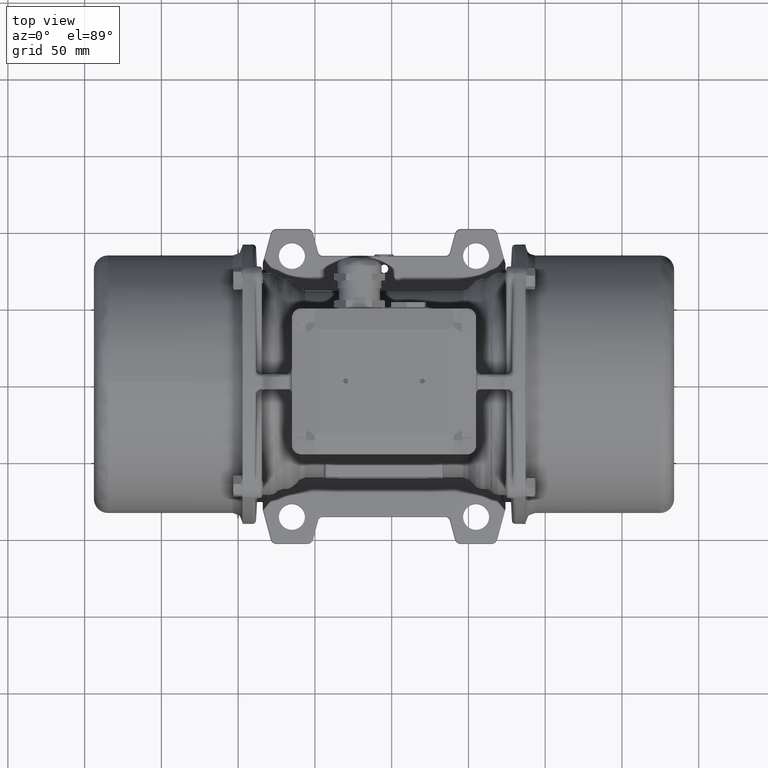
[diagram: clean part render]
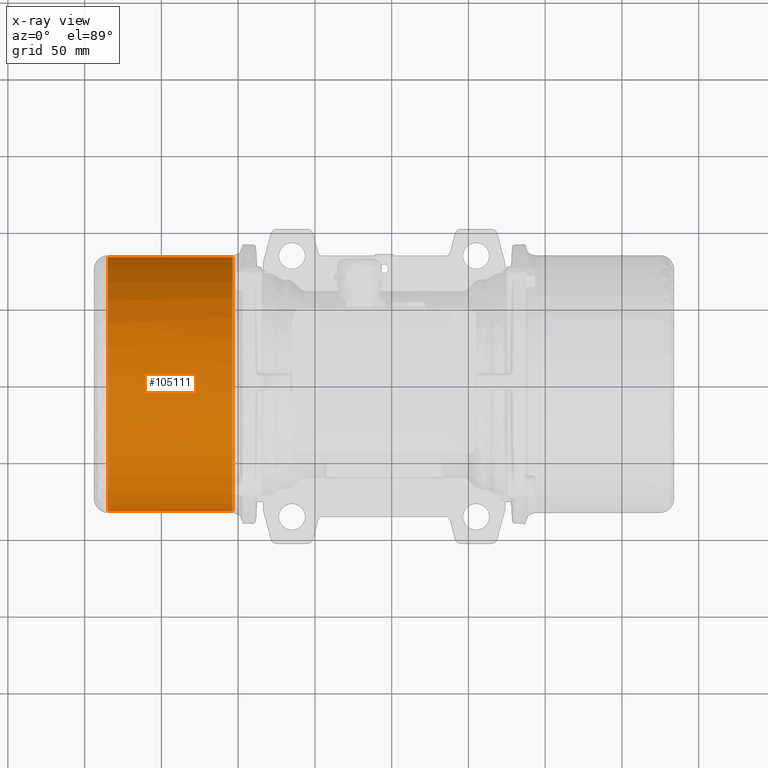
[diagram: x-ray — body ghosted, one internal face saturated and labeled with its STEP entity id]
A machine part, top view, then the same camera in x-ray: the body is ghosted and one INTERNAL B-rep face — a face not visible from any outside direction — is saturated and labeled: STEP entity #105111.
In plain terms, the highlighted cylindrical surface (partial cylindrical patch) has radius 82.7 mm, axis along (-1, 0, 0).
Its self-contained STEP definition (entity closure, byte-faithful):
#4409 = CARTESIAN_POINT ( 'NONE',  ( -103.5000152587889800, 82.69999998929405600, -68.99999999999998600 ) ) ;
#4461 = DIRECTION ( 'NONE',  ( -1.000000000000000000, 3.413969940421760200E-016, 0.0000000000000000000 ) ) ;
#4519 = CARTESIAN_POINT ( 'NONE',  ( -103.5000152587890300, -82.70000001070593500, -69.00000000000000000 ) ) ;
#4521 = DIRECTION ( 'NONE',  ( -1.000000000000000000, 3.413969940421760200E-016, 0.0000000000000000000 ) ) ;
#6262 = CARTESIAN_POINT ( 'NONE',  ( -184.8000152587889900, 82.69999998929409900, -68.99999998688879500 ) ) ;
#6283 = CARTESIAN_POINT ( 'NONE',  ( -184.8000152587889900, 82.69999998360610500, -66.29476778889633700 ) ) ;
#6285 = CARTESIAN_POINT ( 'NONE',  ( -184.8000152587889900, 82.43409582488270400, -60.88051049506188400 ) ) ;
#6287 = CARTESIAN_POINT ( 'NONE',  ( -184.8000152587889900, 81.24136085191159400, -52.84031927547700000 ) ) ;
#6289 = CARTESIAN_POINT ( 'NONE',  ( -184.8000152587889900, 79.26622166312230900, -44.95491321030630200 ) ) ;
#6291 = CARTESIAN_POINT ( 'NONE',  ( -184.8000152587889900, 76.52770484085640100, -37.30129129074310200 ) ) ;
#6293 = CARTESIAN_POINT ( 'NONE',  ( -184.8000152587889900, 73.05218381975579700, -29.95288745134129700 ) ) ;
#6295 = CARTESIAN_POINT ( 'NONE',  ( -184.8000152587889900, 68.87312979282299400, -22.98054449421110200 ) ) ;
#6297 = CARTESIAN_POINT ( 'NONE',  ( -184.8000152587889900, 64.03078936582119200, -16.45139022364369900 ) ) ;
#6299 = CARTESIAN_POINT ( 'NONE',  ( -184.8000152587889900, 58.57179696001870200, -10.42830929718990000 ) ) ;
#6301 = CARTESIAN_POINT ( 'NONE',  ( -184.8000152587889900, 52.54872569691159600, -4.969305905398639900 ) ) ;
#6303 = CARTESIAN_POINT ( 'NONE',  ( -184.8000152587889900, 46.01958108992549500, -0.1269536549657079800 ) ) ;
#6305 = CARTESIAN_POINT ( 'NONE',  ( -184.8000152587889900, 39.04724241918440000, 4.052113020628000900 ) ) ;
#6307 = CARTESIAN_POINT ( 'NONE',  ( -184.8000152587889900, 31.69885716920380100, 7.527647366589739900 ) ) ;
#6309 = CARTESIAN_POINT ( 'NONE',  ( -184.8000152587889900, 24.04519436141059800, 10.26617806880130100 ) ) ;
#6311 = CARTESIAN_POINT ( 'NONE',  ( -184.8000152587889900, 16.15996300925679900, 12.24133155732529900 ) ) ;
#6313 = CARTESIAN_POINT ( 'NONE',  ( -184.8000152587889900, 8.119102259580238000, 13.43408601023210200 ) ) ;
#6315 = CARTESIAN_POINT ( 'NONE',  ( -184.8000152587889900, 5.005654495526809600E-005, 13.83295454113590000 ) ) ;
#6317 = CARTESIAN_POINT ( 'NONE',  ( -184.8000152587889900, -8.119002628665638700, 13.43409582513340100 ) ) ;
#6319 = CARTESIAN_POINT ( 'NONE',  ( -184.8000152587889900, -16.15986482022480100, 12.24135109260490000 ) ) ;
#6321 = CARTESIAN_POINT ( 'NONE',  ( -184.8000152587889900, -24.04509856008200000, 10.26620713632370000 ) ) ;
#6323 = CARTESIAN_POINT ( 'NONE',  ( -184.8000152587889900, -31.69876467840469700, 7.527685686418630300 ) ) ;
#6325 = CARTESIAN_POINT ( 'NONE',  ( -184.8000152587889900, -39.04715412985880400, 4.052160223722060200 ) ) ;
#6327 = CARTESIAN_POINT ( 'NONE',  ( -184.8000152587889900, -46.01949785255460100, -0.1268980231983270200 ) ) ;
#6329 = CARTESIAN_POINT ( 'NONE',  ( -184.8000152587889900, -52.54864831332370300, -4.969242380722699100 ) ) ;
#6331 = CARTESIAN_POINT ( 'NONE',  ( -184.8000152587889900, -58.57172617566670400, -10.42823849138320100 ) ) ;
#6333 = CARTESIAN_POINT ( 'NONE',  ( -184.8000152587889900, -64.03072586260378800, -16.45131281860540200 ) ) ;
#6335 = CARTESIAN_POINT ( 'NONE',  ( -184.8000152587889900, -68.87307418251870700, -22.98046123539469900 ) ) ;
#6337 = CARTESIAN_POINT ( 'NONE',  ( -184.8000152587889900, -73.05213663812389800, -29.95279914057519800 ) ) ;
#6339 = CARTESIAN_POINT ( 'NONE',  ( -184.8000152587889900, -76.52766654250709200, -37.30119877850890500 ) ) ;
#6341 = CARTESIAN_POINT ( 'NONE',  ( -184.8000152587889900, -79.26619261702599300, -44.95481738754830300 ) ) ;
#6343 = CARTESIAN_POINT ( 'NONE',  ( -184.8000152587889900, -81.24134133826640900, -52.84022106502109800 ) ) ;
#6345 = CARTESIAN_POINT ( 'NONE',  ( -184.8000152587889900, -82.43409092968570900, -60.88044386567270300 ) ) ;
#6347 = CARTESIAN_POINT ( 'NONE',  ( -184.8000152587889900, -82.70000001113479000, -66.29473452811429000 ) ) ;
#6349 = CARTESIAN_POINT ( 'NONE',  ( -184.8000152587889900, -82.70000001070600600, -69.00000001311121900 ) ) ;
#6351 = CARTESIAN_POINT ( 'NONE',  ( -103.5000152587890100, 82.69999998929409900, -68.99999998688879500 ) ) ;
#6373 = CARTESIAN_POINT ( 'NONE',  ( -103.5000152587889300, 82.69999998843593400, -63.58729764414132300 ) ) ;
#6375 = CARTESIAN_POINT ( 'NONE',  ( -103.5000152587889500, 82.16690851994903300, -58.17472914121025000 ) ) ;
#6377 = CARTESIAN_POINT ( 'NONE',  ( -103.5000152587889300, 80.05497683221767600, -47.55733157160357600 ) ) ;
#6379 = CARTESIAN_POINT ( 'NONE',  ( -103.5000152587889300, 78.47618883464599500, -42.35276504100578900 ) ) ;
#6381 = CARTESIAN_POINT ( 'NONE',  ( -103.5000152587889200, 74.33348581127411600, -32.35139522158212300 ) ) ;
#6383 = CARTESIAN_POINT ( 'NONE',  ( -103.5000152587889300, 71.76967322196975400, -27.55483923633380500 ) ) ;
#6385 = CARTESIAN_POINT ( 'NONE',  ( -103.5000152587889300, 65.75540061689088100, -18.55384420042078400 ) ) ;
#6387 = CARTESIAN_POINT ( 'NONE',  ( -103.5000152587889500, 62.30508931585833200, -14.34962771709573000 ) ) ;
#6389 = CARTESIAN_POINT ( 'NONE',  ( -103.5000152587889800, 54.65037225244273600, -6.694910656107297500 ) ) ;
#6391 = CARTESIAN_POINT ( 'NONE',  ( -103.5000152587889500, 50.44615576802366500, -3.244599356407779700 ) ) ;
#6393 = CARTESIAN_POINT ( 'NONE',  ( -103.5000152587889800, 41.44516073020363200, 2.769673245817062800 ) ) ;
#6395 = CARTESIAN_POINT ( 'NONE',  ( -103.5000152587889500, 36.64860474414251700, 5.333485833600461100 ) ) ;
#6397 = CARTESIAN_POINT ( 'NONE',  ( -103.5000152587889300, 26.64723492340530700, 9.476188853801144100 ) ) ;
#6399 = CARTESIAN_POINT ( 'NONE',  ( -103.5000152587889600, 21.44266839230676400, 11.05497684972261200 ) ) ;
#6401 = CARTESIAN_POINT ( 'NONE',  ( -103.5000152587889500, 10.82527082203047500, 13.16690853408742600 ) ) ;
#6403 = CARTESIAN_POINT ( 'NONE',  ( -103.5000152587889600, 5.412702318930347400, 13.70000000085811300 ) ) ;
#6405 = CARTESIAN_POINT ( 'NONE',  ( -103.5000152587889800, -5.412702366564468900, 13.69999999914187100 ) ) ;
#6407 = CARTESIAN_POINT ( 'NONE',  ( -103.5000152587889600, -10.82527086949555400, 13.16690853065497900 ) ) ;
#6409 = CARTESIAN_POINT ( 'NONE',  ( -103.5000152587889800, -21.44266843910221000, 11.05497684292363300 ) ) ;
#6411 = CARTESIAN_POINT ( 'NONE',  ( -103.5000152587889800, -26.64723496970002300, 9.476188845351968500 ) ) ;
#6413 = CARTESIAN_POINT ( 'NONE',  ( -103.5000152587889900, -36.64860478912370200, 5.333485821980103100 ) ) ;
#6415 = CARTESIAN_POINT ( 'NONE',  ( -103.5000152587889800, -41.44516077437195600, 2.769673232675811600 ) ) ;
#6417 = CARTESIAN_POINT ( 'NONE',  ( -103.5000152587889900, -50.44615581028499900, -3.244599372403028900 ) ) ;
#6419 = CARTESIAN_POINT ( 'NONE',  ( -103.5000152587889800, -54.65037229361004000, -6.694910673435611400 ) ) ;
#6421 = CARTESIAN_POINT ( 'NONE',  ( -103.5000152587889800, -62.30508935459850100, -14.34962773685116500 ) ) ;
#6423 = CARTESIAN_POINT ( 'NONE',  ( -103.5000152587889900, -65.75540065429807200, -18.55384422127028200 ) ) ;
#6425 = CARTESIAN_POINT ( 'NONE',  ( -103.5000152587890100, -71.76967325652292100, -27.55483925909029400 ) ) ;
#6427 = CARTESIAN_POINT ( 'NONE',  ( -103.5000152587889900, -74.33348584430633800, -32.35139524515141600 ) ) ;
#6429 = CARTESIAN_POINT ( 'NONE',  ( -103.5000152587890100, -78.47618886450702300, -42.35276506588861200 ) ) ;
#6431 = CARTESIAN_POINT ( 'NONE',  ( -103.5000152587889900, -80.05497686042848200, -47.55733159698708300 ) ) ;
#6433 = CARTESIAN_POINT ( 'NONE',  ( -103.5000152587890100, -82.16690854479333000, -58.17472916726338600 ) ) ;
#6435 = CARTESIAN_POINT ( 'NONE',  ( -103.5000152587889900, -82.70000001156405700, -63.58729767036351900 ) ) ;
#6437 = CARTESIAN_POINT ( 'NONE',  ( -103.5000152587890100, -82.70000001070589200, -69.00000001311121900 ) ) ;
#20235 = EDGE_LOOP ( 'NONE', ( #80617, #80618, #80619, #80620 ) ) ;
#21743 = FACE_OUTER_BOUND ( 'NONE', #20235, .T. ) ;
#21751 = CYLINDRICAL_SURFACE ( 'NONE', #211363, 82.69999999999998900 ) ;
#51176 = VERTEX_POINT ( 'NONE', #172627 ) ;
#51181 = VERTEX_POINT ( 'NONE', #172652 ) ;
#51198 = VERTEX_POINT ( 'NONE', #172664 ) ;
#51511 = VERTEX_POINT ( 'NONE', #172889 ) ;
#70241 = B_SPLINE_CURVE_WITH_KNOTS ( 'NONE', 3,
 ( #6262, #6283, #6285, #6287, #6289, #6291, #6293, #6295, #6297, #6299, #6301, #6303, #6305, #6307, #6309, #6311, #6313, #6315, #6317, #6319, #6321, #6323, #6325, #6327, #6329, #6331, #6333, #6335, #6337, #6339, #6341, #6343, #6345, #6347, #6349 ),
 .UNSPECIFIED., .F., .F.,
 ( 4, 1, 1, 1, 1, 1, 1, 1, 1, 1, 1, 1, 1, 1, 1, 1, 1, 1, 1, 1, 1, 1, 1, 1, 1, 1, 1, 1, 1, 1, 1, 1, 4 ),
 ( 0.0000000000000000000, 0.03124962698115471600, 0.06249963901402141200, 0.09374965104688423600, 0.1249996630797509400, 0.1562496751126176400, 0.1874996871454844300, 0.2187496991783511300, 0.2499997112112179500, 0.2812497232440806500, 0.3124997352769474700, 0.3437497473098141700, 0.3749997593426809800, 0.4062497713755478000, 0.4374997834084103900, 0.4687497954412772100, 0.4999998074741440200, 0.5312498195070106700, 0.5624998315398774800, 0.5937498435727401900, 0.6249998556056082200, 0.6562498676384741500, 0.6874998796713400800, 0.7187498917042060000, 0.7499999037370720400, 0.7812499157699378500, 0.8124999278028038900, 0.8437499398356702600, 0.8749999518685361900, 0.9062499639014022200, 0.9374999759342680400, 0.9687499879671339600, 1.000000000000000000 ),
 .UNSPECIFIED. ) ;
#70243 = B_SPLINE_CURVE_WITH_KNOTS ( 'NONE', 3,
 ( #6351, #6373, #6375, #6377, #6379, #6381, #6383, #6385, #6387, #6389, #6391, #6393, #6395, #6397, #6399, #6401, #6403, #6405, #6407, #6409, #6411, #6413, #6415, #6417, #6419, #6421, #6423, #6425, #6427, #6429, #6431, #6433, #6435, #6437 ),
 .UNSPECIFIED., .F., .F.,
 ( 4, 2, 2, 2, 2, 2, 2, 2, 2, 2, 2, 2, 2, 2, 2, 2, 4 ),
 ( 0.0000000000000000000, 0.06250000000000000000, 0.1250000000000000000, 0.1875000000000000000, 0.2500000000000000000, 0.3125000000000000000, 0.3750000000000000000, 0.4375000000000000000, 0.5000000000000000000, 0.5625000000000000000, 0.6250000000000000000, 0.6875000000000000000, 0.7500000000000000000, 0.8125000000000000000, 0.8750000000000000000, 0.9375000000000000000, 1.000000000000000000 ),
 .UNSPECIFIED. ) ;
#80617 = ORIENTED_EDGE ( 'NONE', *, *, #131431, .F. ) ;
#80618 = ORIENTED_EDGE ( 'NONE', *, *, #132143, .T. ) ;
#80619 = ORIENTED_EDGE ( 'NONE', *, *, #131440, .T. ) ;
#80620 = ORIENTED_EDGE ( 'NONE', *, *, #132136, .F. ) ;
#105111 = ADVANCED_FACE ( 'NONE', ( #21743 ), #21751, .F. ) ;
#131431 = EDGE_CURVE ( 'NONE', #51181, #51511, #224984, .T. ) ;
#131440 = EDGE_CURVE ( 'NONE', #51176, #51198, #224991, .T. ) ;
#132136 = EDGE_CURVE ( 'NONE', #51511, #51198, #70241, .T. ) ;
#132143 = EDGE_CURVE ( 'NONE', #51181, #51176, #70243, .T. ) ;
#172627 = CARTESIAN_POINT ( 'NONE',  ( -103.5000152587890100, -82.70000001070589200, -69.00000001311121900 ) ) ;
#172652 = CARTESIAN_POINT ( 'NONE',  ( -103.5000152587890100, 82.69999998929409900, -68.99999998688879500 ) ) ;
#172664 = CARTESIAN_POINT ( 'NONE',  ( -184.8000152587889900, -82.70000001070600600, -69.00000001311121900 ) ) ;
#172889 = CARTESIAN_POINT ( 'NONE',  ( -184.8000152587889900, 82.69999998929409900, -68.99999998688879500 ) ) ;
#199994 = DIRECTION ( 'NONE',  ( -3.356176011563351500E-016, -1.000000000000000000, 0.0000000000000000000 ) ) ;
#199996 = DIRECTION ( 'NONE',  ( -1.000000000000000000, 3.413969940421760200E-016, 0.0000000000000000000 ) ) ;
#199997 = CARTESIAN_POINT ( 'NONE',  ( -103.5000152587890100, -1.070593613761162100E-008, -69.00000000000000000 ) ) ;
#211363 = AXIS2_PLACEMENT_3D ( 'NONE', #199997, #199996, #199994 ) ;
#224981 = VECTOR ( 'NONE', #4521, 1000.000000000000000 ) ;
#224984 = LINE ( 'NONE', #4409, #224988 ) ;
#224988 = VECTOR ( 'NONE', #4461, 1000.000000000000000 ) ;
#224991 = LINE ( 'NONE', #4519, #224981 ) ;